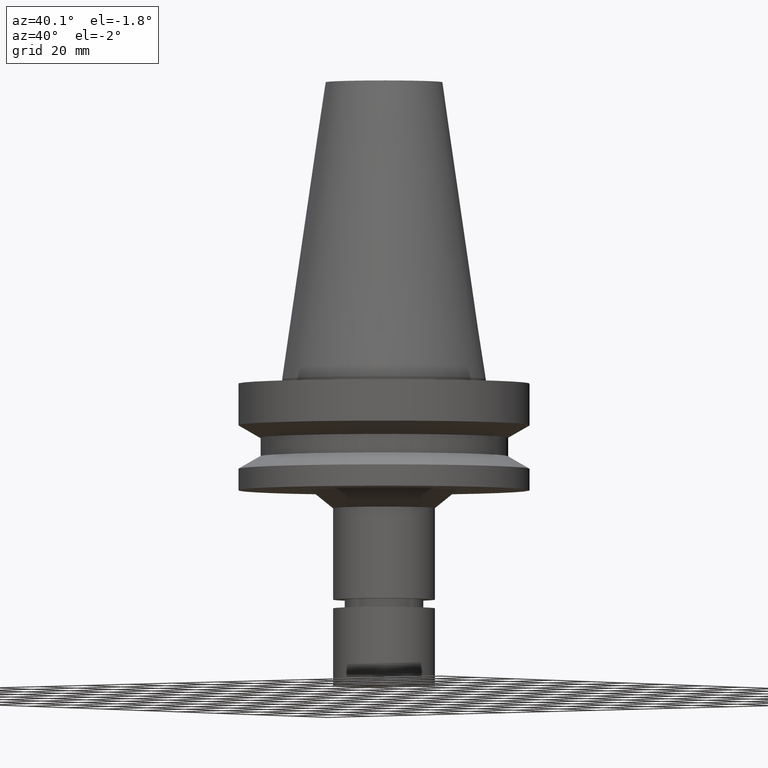
[diagram: clean part render]
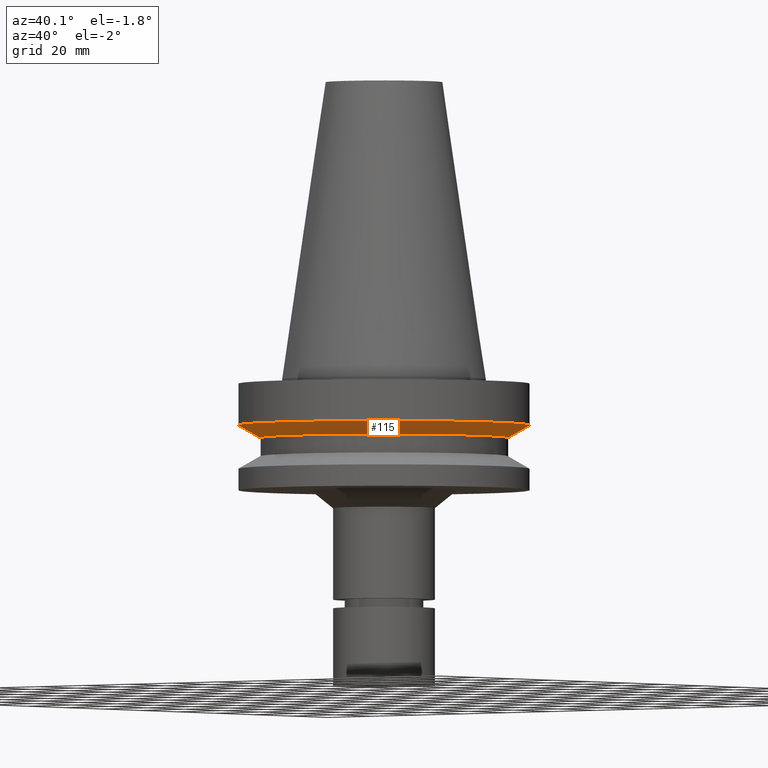
[diagram: same view with one face highlighted and labeled with its STEP entity id]
A machine part, auxiliary view. The second image highlights one B-rep face of the part: STEP entity #115.
In plain terms, the highlighted conical surface has half-angle 60 deg.
Its self-contained STEP definition (entity closure, byte-faithful):
#75=EDGE_CURVE('Unnamed[1]',#201,#201,#202,.T.);
#109=EDGE_CURVE('Unnamed[1]',#251,#251,#252,.T.);
#115=ADVANCED_FACE('Unnamed[1]',(#260,#261),#262,.T.);
#201=VERTEX_POINT('',#377);
#202=CIRCLE('',#378,42.5);
#251=VERTEX_POINT('',#440);
#252=CIRCLE('',#441,50.0);
#260=FACE_BOUND('',#451,.T.);
#261=FACE_BOUND('',#452,.T.);
#262=CONICAL_SURFACE('',#453,46.25,1.04719755108882);
#377=CARTESIAN_POINT('',(1.2264915470779E-015,42.5,-20.03012702));
#378=AXIS2_PLACEMENT_3D('',#580,#581,#582);
#440=CARTESIAN_POINT('',(9.61347737330674E-016,50.0,-15.7));
#441=AXIS2_PLACEMENT_3D('',#633,#634,#635);
#451=EDGE_LOOP('',(#643));
#452=EDGE_LOOP('',(#644));
#453=AXIS2_PLACEMENT_3D('',#645,#646,#647);
#580=CARTESIAN_POINT('',(1.2264915470779E-015,1.29933506625849E-014,-20.03012702));
#581=DIRECTION('',(-6.12323399573677E-017,1.40684069970318E-019,1.0));
#582=DIRECTION('',(-4.81853831596719E-033,1.0,-1.40684069970318E-019));
#633=CARTESIAN_POINT('',(9.61347737330675E-016,1.29939598424774E-014,-15.7));
#634=DIRECTION('',(-6.12323399573677E-017,1.40684069917098E-019,1.0));
#635=DIRECTION('',(-4.81853831597521E-033,1.0,-1.40684069917098E-019));
#643=ORIENTED_EDGE('',*,*,#109,.F.);
#644=ORIENTED_EDGE('',*,*,#75,.T.);
#645=CARTESIAN_POINT('',(1.09391964220429E-015,1.29936552525312E-014,-17.86506351));
#646=DIRECTION('',(-6.12323399573677E-017,1.40684069941551E-019,1.0));
#647=DIRECTION('',(-4.81853831597153E-033,1.0,-1.40684069941551E-019));